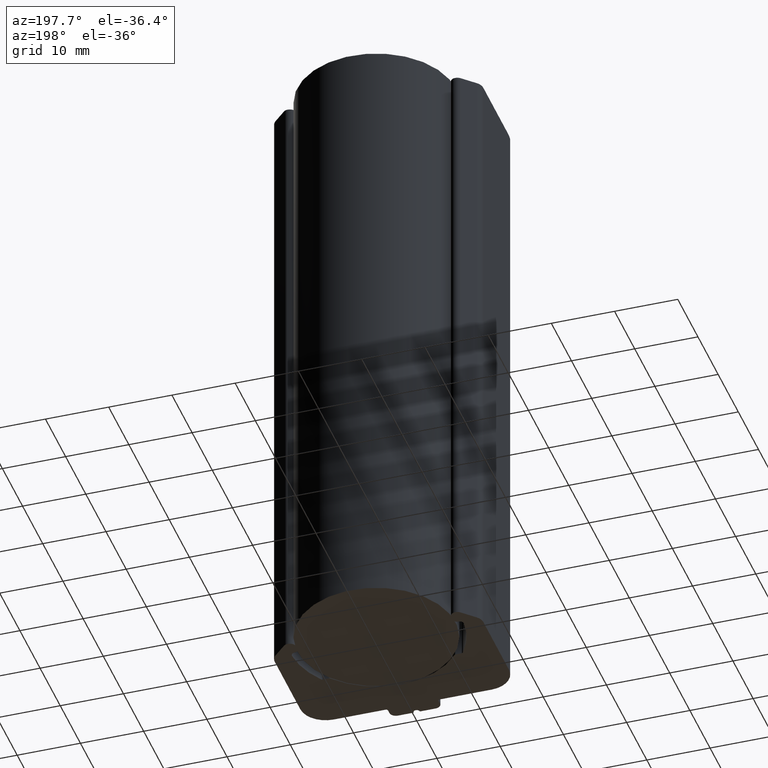
[diagram: clean part render]
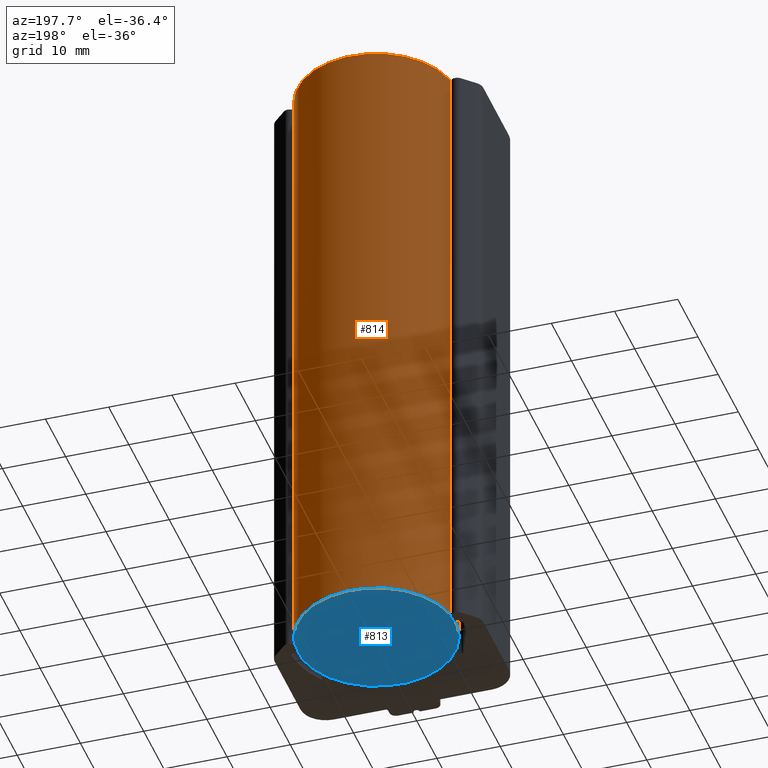
[diagram: same view with the hole feature highlighted: cylindrical wall and planar end face, labeled with their STEP entity ids]
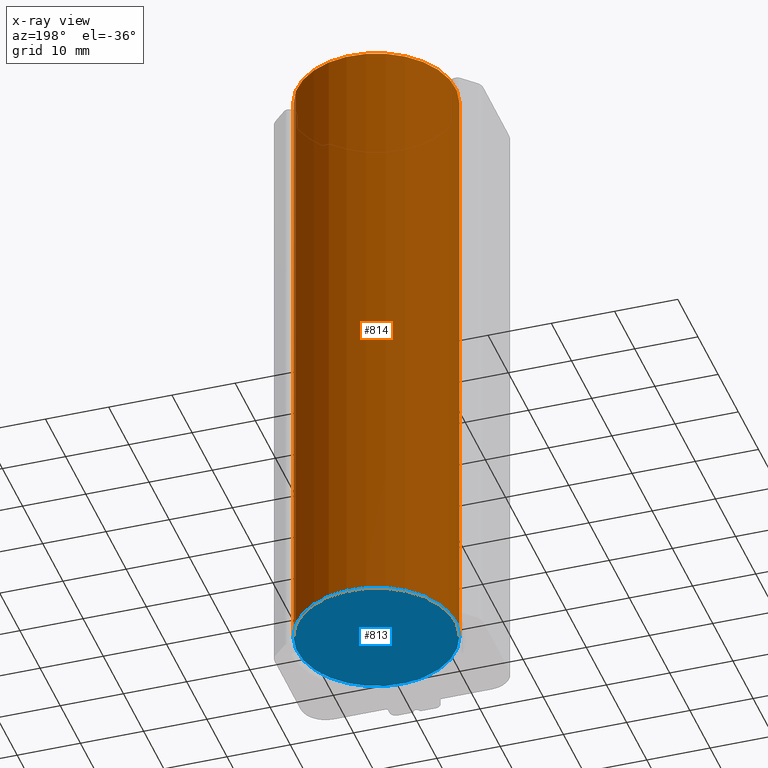
[diagram: x-ray of the same camera — body ghosted, the hole faces saturated]
A machine part, auxiliary view. The highlighted faces form one hole feature of diameter 25 mm: the cylindrical wall (entity #814, orange) and its adjacent planar end face (entity #813, blue) — they share a circular edge in the B-rep.
The next image is the same camera in x-ray (body ghosted, the hole faces saturated) — the bore reads through the body.
Wall:
#49=CYLINDRICAL_SURFACE('',#969,12.5);
#91=FACE_OUTER_BOUND('',#134,.T.);
#134=EDGE_LOOP('',(#748,#749,#750,#751));
#180=CIRCLE('',#968,12.5);
#181=CIRCLE('',#970,12.5);
#252=LINE('',#1472,#323);
#323=VECTOR('',#1226,12.5);
#400=VERTEX_POINT('',#1467);
#401=VERTEX_POINT('',#1470);
#516=EDGE_CURVE('',#400,#400,#180,.T.);
#517=EDGE_CURVE('',#401,#401,#181,.T.);
#518=EDGE_CURVE('',#401,#400,#252,.T.);
#748=ORIENTED_EDGE('',*,*,#517,.F.);
#749=ORIENTED_EDGE('',*,*,#518,.T.);
#750=ORIENTED_EDGE('',*,*,#516,.F.);
#751=ORIENTED_EDGE('',*,*,#518,.F.);
#814=ADVANCED_FACE('',(#91),#49,.T.);
#968=AXIS2_PLACEMENT_3D('',#1468,#1220,#1221);
#969=AXIS2_PLACEMENT_3D('',#1469,#1222,#1223);
#970=AXIS2_PLACEMENT_3D('',#1471,#1224,#1225);
#1220=DIRECTION('center_axis',(0.,0.,-1.));
#1221=DIRECTION('ref_axis',(-1.,0.,0.));
#1222=DIRECTION('center_axis',(0.,0.,1.));
#1223=DIRECTION('ref_axis',(-1.,0.,0.));
#1224=DIRECTION('center_axis',(0.,0.,1.));
#1225=DIRECTION('ref_axis',(-1.,0.,0.));
#1226=DIRECTION('',(0.,0.,-1.));
#1467=CARTESIAN_POINT('',(12.5,1.53080849893419E-15,-50.));
#1468=CARTESIAN_POINT('Origin',(0.,0.,-50.));
#1469=CARTESIAN_POINT('Origin',(0.,0.,0.));
#1470=CARTESIAN_POINT('',(12.5,1.53080849893419E-15,50.));
#1471=CARTESIAN_POINT('Origin',(0.,0.,50.));
#1472=CARTESIAN_POINT('',(12.5,1.53080849893419E-15,0.));
End face:
#90=FACE_OUTER_BOUND('',#133,.T.);
#133=EDGE_LOOP('',(#747));
#180=CIRCLE('',#968,12.5);
#400=VERTEX_POINT('',#1467);
#516=EDGE_CURVE('',#400,#400,#180,.T.);
#747=ORIENTED_EDGE('',*,*,#516,.T.);
#771=PLANE('',#967);
#813=ADVANCED_FACE('',(#90),#771,.F.);
#967=AXIS2_PLACEMENT_3D('',#1466,#1218,#1219);
#968=AXIS2_PLACEMENT_3D('',#1468,#1220,#1221);
#1218=DIRECTION('center_axis',(0.,0.,1.));
#1219=DIRECTION('ref_axis',(1.,0.,0.));
#1220=DIRECTION('center_axis',(0.,0.,-1.));
#1221=DIRECTION('ref_axis',(-1.,0.,0.));
#1466=CARTESIAN_POINT('Origin',(-7.19686321377933E-16,-2.96059473233375E-16,
-50.));
#1467=CARTESIAN_POINT('',(12.5,1.53080849893419E-15,-50.));
#1468=CARTESIAN_POINT('Origin',(0.,0.,-50.));